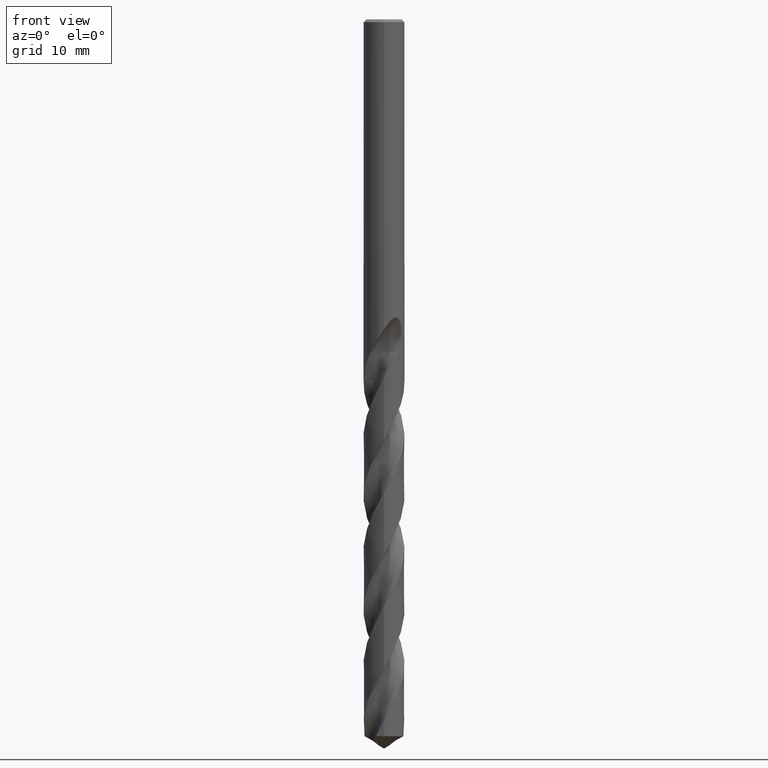
[diagram: clean part render]
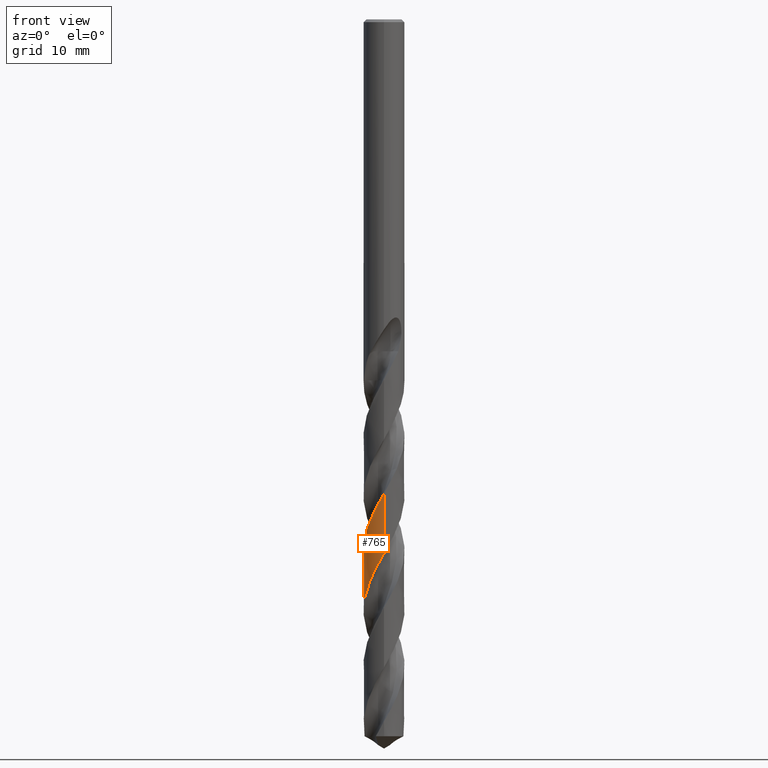
[diagram: same view with one face highlighted and labeled with its STEP entity id]
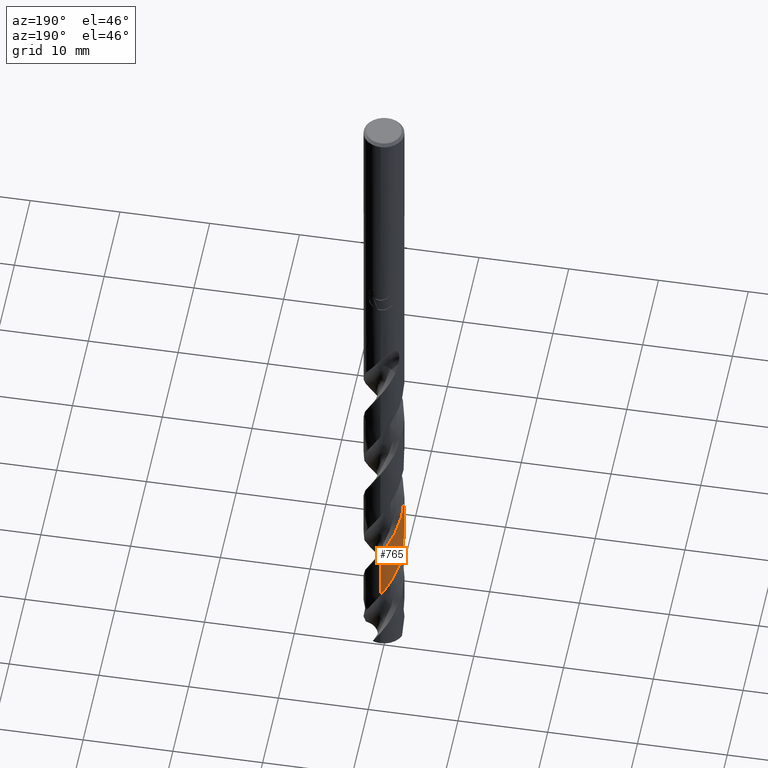
[diagram: same view with one face highlighted and labeled with its STEP entity id]
A machine part, front view. The second image highlights one B-rep face of the part: STEP entity #765.
A second angle (auxiliary view) of the same face is appended — the face is thin or edge-on in the first view.
In plain terms, the highlighted conical surface has half-angle 0 deg.
Its self-contained STEP definition (entity closure, byte-faithful):
#377=VERTEX_POINT('',#947);
#523=VERTEX_POINT('',#1107);
#679=EDGE_CURVE('',#761,#709,#1276,.T.);
#707=EDGE_CURVE('',#709,#523,#1307,.T.);
#709=VERTEX_POINT('',#1309);
#743=EDGE_CURVE('',#523,#377,#1347,.T.);
#761=VERTEX_POINT('',#1365);
#765=ADVANCED_FACE('',(#1369),#1370,.T.);
#789=EDGE_CURVE('',#377,#761,#1396,.T.);
#947=CARTESIAN_POINT('',(-8.8014092150001E-014,-2.24993173351738,-51.9913240512082));
#1107=CARTESIAN_POINT('',(-1.86078440485266E-015,-2.24994862443339,-58.5868996756251));
#1276=LINE('',#7975,#7976);
#1307=B_SPLINE_CURVE_WITH_KNOTS('',3,(#9027,#9028,#9029,#9030,#9031,#9032,#9033,#9034,#9035,#9036,#9037,#9038,#9039,#9040,#9041,#9042,#9043,#9044,#9045,#9046,#9047,#9048,#9049,#9050,#9051,#9052,#9053,#9054,#9055,#9056,#9057,#9058,#9059,#9060,#9061,#9062,#9063,#9064,#9065,#9066,#9067,#9068,#9069,#9070,#9071,#9072,#9073,#9074,#9075,#9076,#9077,#9078,#9079,#9080,#9081,#9082,#9083,#9084,#9085,#9086,#9087,#9088,#9089,#9090,#9091,#9092,#9093,#9094,#9095,#9096,#9097,#9098,#9099,#9100,#9101,#9102,#9103,#9104,#9105,#9106,#9107,#9108,#9109,#9110,#9111,#9112,#9113,#9114,#9115,#9116,#9117,#9118,#9119,#9120,#9121,#9122,#9123,#9124,#9125,#9126,#9127,#9128,#9129,#9130,#9131,#9132,#9133,#9134,#9135,#9136,#9137,#9138,#9139,#9140,#9141,#9142,#9143,#9144,#9145,#9146,#9147,#9148,#9149,#9150),.UNSPECIFIED.,.F.,.F.,(4,2,2,2,2,2,2,2,2,2,2,2,2,2,2,2,2,2,2,2,2,2,2,2,2,2,2,2,2,2,2,2,2,2,2,2,2,2,2,2,2,2,2,2,2,2,2,2,2,2,2,2,2,2,2,2,2,2,2,2,2,4),(0.0,0.0466261055672885,1.52303063559916,1.60058358218691,2.630456244664,3.44019373341575,4.20498012131632,4.97178479545146,5.73691612475028,6.50489864307532,7.27009664734627,8.03931752793195,8.80477975586422,9.57523530347814,10.3410236148287,11.1127098319767,11.8788525090644,12.6518370894737,13.4008077389436,13.7889663420783,14.1307576216393,15.4279138916359,15.583145457963,16.5835943804768,17.3578365488728,18.1275912882764,18.9031016096508,19.6731867016736,19.9999162676805,20.356805041322,21.6305118399056,21.957502544516,22.7370833152345,23.1276258777632,23.515166377853,24.8500792704919,24.9978690350612,26.1617746514953,26.9258048738281,27.7005070685229,28.4658907629098,29.2401229759259,30.0067751985739,30.7805558407156,31.5328451223028,32.422510234263,33.2224633181093,33.9981084960261,34.7587957887474,35.5335420936246,36.2955717095529,37.0695397490351,37.8330476487325,38.6064076253993,39.371370221219,40.0245333316545,41.1667926286067,42.0292404785394,42.0693860812059,43.3453316655265,43.9834485056916,44.6240352850066),.UNSPECIFIED.);
#1309=CARTESIAN_POINT('',(-1.21283237270191E-014,2.24998067415239,-71.1016943382078));
#1347=LINE('',#9343,#9344);
#1365=CARTESIAN_POINT('',(1.4174858852018E-013,2.24996378460406,-64.5066527668295));
#1369=FACE_OUTER_BOUND('',#9447,.T.);
#1370=CONICAL_SURFACE('',#9448,2.24995,2.56094645322142E-006);
#1396=B_SPLINE_CURVE_WITH_KNOTS('',3,(#9611,#9612,#9613,#9614,#9615,#9616,#9617,#9618,#9619,#9620,#9621,#9622,#9623,#9624,#9625,#9626,#9627,#9628,#9629,#9630,#9631,#9632,#9633,#9634,#9635,#9636,#9637,#9638,#9639,#9640,#9641,#9642,#9643,#9644,#9645,#9646,#9647,#9648,#9649,#9650,#9651,#9652,#9653,#9654,#9655,#9656,#9657,#9658,#9659,#9660,#9661,#9662,#9663,#9664,#9665,#9666,#9667,#9668,#9669,#9670,#9671,#9672,#9673,#9674,#9675,#9676,#9677,#9678,#9679,#9680,#9681,#9682,#9683,#9684,#9685,#9686,#9687,#9688,#9689,#9690,#9691,#9692,#9693,#9694,#9695,#9696,#9697,#9698,#9699,#9700,#9701,#9702,#9703,#9704,#9705,#9706,#9707,#9708,#9709,#9710,#9711,#9712,#9713,#9714,#9715,#9716,#9717,#9718,#9719,#9720,#9721,#9722,#9723,#9724,#9725,#9726,#9727,#9728,#9729,#9730,#9731,#9732,#9733,#9734,#9735,#9736),.UNSPECIFIED.,.F.,.F.,(4,2,2,2,2,2,2,2,2,2,2,2,2,2,2,2,2,2,2,2,2,2,2,2,2,2,2,2,2,2,2,2,2,2,2,2,2,2,2,2,2,2,2,2,2,2,2,2,2,2,2,2,2,2,2,2,2,2,2,2,2,2,4),(0.0,0.658729216683426,1.41215630054615,2.17567937553736,2.84104373492377,3.80100608845404,4.40122978906446,5.37153083314714,5.97004464820672,6.94667568292461,7.52898634840914,8.4924188350346,9.0990643242038,10.068798805186,10.6633012242142,11.6346131863277,12.2267375637196,13.1972037098199,13.7902881201795,14.7568783283559,15.3561964089543,16.3233246679527,16.9217910022944,17.8943225993414,18.4832218534276,19.4523312916974,20.0467742531556,21.0124747674605,21.6123982652126,22.5803802712467,23.1763179778044,24.1477217025157,24.737651852155,25.7065518982418,26.3002288338463,27.2645031282731,27.8660831357077,28.8353544798742,29.4279794417601,30.3979669183904,30.9894424762761,31.9581708478248,32.5510155003537,33.5140616612185,34.1169565080491,35.0872688382185,35.6770455312836,36.6462140089736,37.2382743126483,38.2050991342089,38.7995758145493,39.7652754990222,40.3653721562656,41.3329106961502,42.1895497462272,42.841056789572,43.821409718665,44.3129456911663,44.559120576954,44.6820168049159,44.7433357309734,44.7739500407802,44.8045339009492),.UNSPECIFIED.);
#7975=CARTESIAN_POINT('',(-2.75826365758532E-016,2.24995,-59.124031803594));
#7976=VECTOR('',#12771,1.0);
#9027=CARTESIAN_POINT('',(2.13356564105792,-0.714421203000789,-78.648063607188));
#9028=CARTESIAN_POINT('',(2.13597707288747,-0.707219532318833,-78.6345035262981));
#9029=CARTESIAN_POINT('',(2.13836599834528,-0.699964201339924,-78.6208663616761));
#9030=CARTESIAN_POINT('',(2.21582415293199,-0.460559414221809,-78.171889415537));
#9031=CARTESIAN_POINT('',(2.25276005697096,-0.217647155177345,-77.7457790248743));
#9032=CARTESIAN_POINT('',(2.24968224635138,0.0397385206539078,-77.2887371550449));
#9033=CARTESIAN_POINT('',(2.24941900646631,0.0525675484141838,-77.2659354401323));
#9034=CARTESIAN_POINT('',(2.24408327465212,0.235993627148386,-76.9401145815292));
#9035=CARTESIAN_POINT('',(2.21972971047913,0.405671180483948,-76.6399065884255));
#9036=CARTESIAN_POINT('',(2.14211517453889,0.701371052317301,-76.0994202063407));
#9037=CARTESIAN_POINT('',(2.09639793222338,0.828024483140251,-75.8605455855159));
#9038=CARTESIAN_POINT('',(1.98614649246037,1.06479020917998,-75.3979563795893));
#9039=CARTESIAN_POINT('',(1.92293801880878,1.17511715896917,-75.1744854535025));
#9040=CARTESIAN_POINT('',(1.77828590064576,1.38433026645557,-74.7247563919534));
#9041=CARTESIAN_POINT('',(1.69720583538701,1.48259964041486,-74.4987164272722));
#9042=CARTESIAN_POINT('',(1.51961704320246,1.66412071660317,-74.0489109737997));
#9043=CARTESIAN_POINT('',(1.42336511359442,1.7471698879127,-73.8254589026387));
#9044=CARTESIAN_POINT('',(1.21734657567569,1.89651085023736,-73.3755642682217));
#9045=CARTESIAN_POINT('',(1.10811900895505,1.96231718008816,-73.1493308929748));
#9046=CARTESIAN_POINT('',(0.880304532799659,2.07450188792662,-72.6994543498037));
#9047=CARTESIAN_POINT('',(0.762003053833499,2.1208229232099,-72.476133876225));
#9048=CARTESIAN_POINT('',(0.51801235888827,2.1932547431314,-72.0261859216112));
#9049=CARTESIAN_POINT('',(0.392998574484941,2.21904858328364,-71.7997787381613));
#9050=CARTESIAN_POINT('',(0.140824293514901,2.24913980540844,-71.3498015030404));
#9051=CARTESIAN_POINT('',(0.0139111861121134,2.2535122607082,-71.1265714200856));
#9052=CARTESIAN_POINT('',(-0.240349739743012,2.24074731982133,-70.6765497577273));
#9053=CARTESIAN_POINT('',(-0.366942251009118,2.22350673831747,-70.4499891018574));
#9054=CARTESIAN_POINT('',(-0.614784830728546,2.16805611039287,-69.9999353242463));
#9055=CARTESIAN_POINT('',(-0.735876658234565,2.13001597311322,-69.7767997551927));
#9056=CARTESIAN_POINT('',(-0.971485502953687,2.03345566655858,-69.326727980997));
#9057=CARTESIAN_POINT('',(-1.08523541098659,1.97506777066149,-69.1000362176007));
#9058=CARTESIAN_POINT('',(-1.30052552409207,1.84038699796611,-68.649944463667));
#9059=CARTESIAN_POINT('',(-1.40202867659697,1.76430350803553,-68.4269176502059));
#9060=CARTESIAN_POINT('',(-1.5921738175317,1.59490341768532,-67.976815377953));
#9061=CARTESIAN_POINT('',(-1.68011019247138,1.50195112919019,-67.7500017182522));
#9062=CARTESIAN_POINT('',(-1.83654903345821,1.30564765872047,-67.3050288772386));
#9063=CARTESIAN_POINT('',(-1.90552773172232,1.20277079464298,-67.0871811218855));
#9064=CARTESIAN_POINT('',(-1.99697028569423,1.03855150225748,-66.7550174082803));
#9065=CARTESIAN_POINT('',(-2.02572992933102,0.98126157106241,-66.6417465803431));
#9066=CARTESIAN_POINT('',(-2.07508751881499,0.871519125832286,-66.4283378760446));
#9067=CARTESIAN_POINT('',(-2.09622983835876,0.819359253875499,-66.3282033315702));
#9068=CARTESIAN_POINT('',(-2.18820927518726,0.565479459518504,-65.8491120757691));
#9069=CARTESIAN_POINT('',(-2.23196155369882,0.355348876487865,-65.4755489333276));
#9070=CARTESIAN_POINT('',(-2.24707716801505,0.116791347202708,-65.0511031236475));
#9071=CARTESIAN_POINT('',(-2.24825618739296,0.0913105014553892,-65.0057226336637));
#9072=CARTESIAN_POINT('',(-2.25381031152081,-0.098519636718732,-64.6683072551502));
#9073=CARTESIAN_POINT('',(-2.24060519087953,-0.263135951107882,-64.3788192781073));
#9074=CARTESIAN_POINT('',(-2.18530711398945,-0.550511387010957,-63.8614884716938));
#9075=CARTESIAN_POINT('',(-2.15058939349651,-0.673430705013908,-63.6349663857866));
#9076=CARTESIAN_POINT('',(-2.06112686017562,-0.911102133960918,-63.1849449251297));
#9077=CARTESIAN_POINT('',(-2.00656960540012,-1.02571111976852,-62.9617965629973));
#9078=CARTESIAN_POINT('',(-1.87810719395805,-1.24553382673321,-62.5117434416694));
#9079=CARTESIAN_POINT('',(-1.80444356418099,-1.35001080052555,-62.2850790634886));
#9080=CARTESIAN_POINT('',(-1.64106780986988,-1.54441271970944,-61.8350099244914));
#9081=CARTESIAN_POINT('',(-1.55157041482641,-1.63432045014788,-61.611972706538));
#9082=CARTESIAN_POINT('',(-1.41384096827592,-1.75107012024469,-61.2928464904085));
#9083=CARTESIAN_POINT('',(-1.37162587440386,-1.78432648009713,-61.1978430026435));
#9084=CARTESIAN_POINT('',(-1.28100288044179,-1.8506117919409,-60.9987932632681));
#9085=CARTESIAN_POINT('',(-1.23243569220689,-1.88330114501907,-60.894646032868));
#9086=CARTESIAN_POINT('',(-1.00494608766055,-2.02385891156572,-60.4201156415689));
#9087=CARTESIAN_POINT('',(-0.812903576109539,-2.10833291967349,-60.0547051015311));
#9088=CARTESIAN_POINT('',(-0.560401963249512,-2.17970254081487,-59.589095978218));
#9089=CARTESIAN_POINT('',(-0.508368739542821,-2.19242302467257,-59.4937983223926));
#9090=CARTESIAN_POINT('',(-0.330579154785765,-2.22920450808144,-59.1717550953411));
#9091=CARTESIAN_POINT('',(-0.203185888197144,-2.24442386272473,-58.9461272955124));
#9092=CARTESIAN_POINT('',(-0.0107825970435421,-2.25084010139822,-58.6059621185497));
#9093=CARTESIAN_POINT('',(0.0534163048034463,-2.25022714178282,-58.4925448452274));
#9094=CARTESIAN_POINT('',(0.180933309540298,-2.24356259344336,-58.2661678350427));
#9095=CARTESIAN_POINT('',(0.244181358447918,-2.23756048128309,-58.1531408291782));
#9096=CARTESIAN_POINT('',(0.523956371854152,-2.19900765449954,-57.6521379761302));
#9097=CARTESIAN_POINT('',(0.735028269543249,-2.13769107199823,-57.2698764872467));
#9098=CARTESIAN_POINT('',(0.955814406469818,-2.03697142460339,-56.8386161401294));
#9099=CARTESIAN_POINT('',(0.977653704728292,-2.02658082686662,-56.7955966460188));
#9100=CARTESIAN_POINT('',(1.17054712709929,-1.93094789743366,-56.4132519362349));
#9101=CARTESIAN_POINT('',(1.33031766517366,-1.82458761772635,-56.0780438509067));
#9102=CARTESIAN_POINT('',(1.56971567705655,-1.61678948461062,-55.5167239067402));
#9103=CARTESIAN_POINT('',(1.6575261518748,-1.52664790779665,-55.2933681591637));
#9104=CARTESIAN_POINT('',(1.81845013419937,-1.33106184825117,-54.845315583003));
#9105=CARTESIAN_POINT('',(1.8909294055259,-1.22590736141952,-54.6209088198693));
#9106=CARTESIAN_POINT('',(2.01650053086788,-1.00588020458041,-54.1724256421656));
#9107=CARTESIAN_POINT('',(2.06960135498892,-0.891536275441972,-53.9486354016206));
#9108=CARTESIAN_POINT('',(2.15669207632407,-0.653551769060377,-53.5002634448192));
#9109=CARTESIAN_POINT('',(2.19023062859374,-0.530400705553036,-53.2759870212329));
#9110=CARTESIAN_POINT('',(2.23587646106483,-0.281016377816701,-52.8272483250641));
#9111=CARTESIAN_POINT('',(2.24810782792538,-0.155337824481077,-52.6030791940095));
#9112=CARTESIAN_POINT('',(2.25139441099909,0.0981533885576738,-52.1544614337645));
#9113=CARTESIAN_POINT('',(2.24223269859519,0.225381338777609,-51.9303156709527));
#9114=CARTESIAN_POINT('',(2.20303959216081,0.473421161890867,-51.485925647594));
#9115=CARTESIAN_POINT('',(2.17369187029939,0.593771100272681,-51.2659793785639));
#9116=CARTESIAN_POINT('',(2.08830955148082,0.850036845408453,-50.7878469025927));
#9117=CARTESIAN_POINT('',(2.02862635273907,0.98399525118034,-50.530592038733));
#9118=CARTESIAN_POINT('',(1.8914293623223,1.22554617097532,-50.0385856362326));
#9119=CARTESIAN_POINT('',(1.81653263162121,1.33406748776726,-49.8047028734714));
#9120=CARTESIAN_POINT('',(1.65095948547999,1.53388897957164,-49.3458152572885));
#9121=CARTESIAN_POINT('',(1.56127377543103,1.62507167641074,-49.1210778976765));
#9122=CARTESIAN_POINT('',(1.36944326917613,1.7895340484966,-48.6734693201687));
#9123=CARTESIAN_POINT('',(1.26776932687369,1.862961070455,-48.4509334412707));
#9124=CARTESIAN_POINT('',(1.05100948610617,1.9934450149843,-48.0034701635698));
#9125=CARTESIAN_POINT('',(0.936287735101574,2.04982198736542,-47.778860115501));
#9126=CARTESIAN_POINT('',(0.700632781722603,2.14172454395059,-47.3308955256373));
#9127=CARTESIAN_POINT('',(0.580152291938146,2.17746029833042,-47.1078536922054));
#9128=CARTESIAN_POINT('',(0.332280604261096,2.22889940968004,-46.6600452931501));
#9129=CARTESIAN_POINT('',(0.205447167991261,2.24414030983781,-46.4355736943046));
#9130=CARTESIAN_POINT('',(-0.0475934032158873,2.25292428285902,-45.9872737437107));
#9131=CARTESIAN_POINT('',(-0.173372854509701,2.24675331904837,-45.7637386918276));
#9132=CARTESIAN_POINT('',(-0.424458060508603,2.21318778633413,-45.3155773749886));
#9133=CARTESIAN_POINT('',(-0.549115464771952,2.18559321448081,-45.0912354244968));
#9134=CARTESIAN_POINT('',(-0.791019839458185,2.11004202378183,-44.6426343329933));
#9135=CARTESIAN_POINT('',(-0.907879613589606,2.0624634291164,-44.4186591810083));
#9136=CARTESIAN_POINT('',(-1.1161940543182,1.95647647249494,-44.0050932815156));
#9137=CARTESIAN_POINT('',(-1.20853194421172,1.90082841841712,-43.8153444095928));
#9138=CARTESIAN_POINT('',(-1.45048147323191,1.73022294663034,-43.2918774936028));
#9139=CARTESIAN_POINT('',(-1.59015230842921,1.60281486574216,-42.9578576101468));
#9140=CARTESIAN_POINT('',(-1.80467504854642,1.35110109196218,-42.3735096456022));
#9141=CARTESIAN_POINT('',(-1.88626433405599,1.23455935680271,-42.1236767503233));
#9142=CARTESIAN_POINT('',(-1.9594700002714,1.10571100165352,-41.8601831864307));
#9143=CARTESIAN_POINT('',(-1.96269697409438,1.09997274039804,-41.8484724725061));
#9144=CARTESIAN_POINT('',(-2.06787597822871,0.911001264885294,-41.4639442919001));
#9145=CARTESIAN_POINT('',(-2.14384293169812,0.714271850475041,-41.0962506837808));
#9146=CARTESIAN_POINT('',(-2.21525040524066,0.407156398775471,-40.5378741451452));
#9147=CARTESIAN_POINT('',(-2.23185801946747,0.303226230218844,-40.3510269279096));
#9148=CARTESIAN_POINT('',(-2.25045398264132,0.0931389316773641,-39.9779391324187));
#9149=CARTESIAN_POINT('',(-2.25234543035742,-0.0126376780765218,-39.7918025392972));
#9150=CARTESIAN_POINT('',(-2.24679470034184,-0.118167852299402,-39.6049290579384));
#9343=CARTESIAN_POINT('',(2.75234247398E-016,-2.24995,-59.124031803594));
#9344=VECTOR('',#12839,1.0);
#9447=EDGE_LOOP('',(#12854,#12855,#12856,#12857));
#9448=AXIS2_PLACEMENT_3D('',#12858,#12859,#12860);
#9611=CARTESIAN_POINT('',(0.0725616041171575,2.24872961374875,-39.6045248001466));
#9612=CARTESIAN_POINT('',(0.180377583151536,2.24525111710368,-39.7957770226307));
#9613=CARTESIAN_POINT('',(0.287877009804448,2.23402098838829,-39.9867762426494));
#9614=CARTESIAN_POINT('',(0.515865047363587,2.19344636505256,-40.3965960046914));
#9615=CARTESIAN_POINT('',(0.635479525314473,2.16182266966221,-40.6146221229196));
#9616=CARTESIAN_POINT('',(0.869820577843305,2.07873522939792,-41.0549531519037));
#9617=CARTESIAN_POINT('',(0.984105927251652,2.0271361984193,-41.2762670774434));
#9618=CARTESIAN_POINT('',(1.18888274820632,1.91325289100747,-41.6909805122487));
#9619=CARTESIAN_POINT('',(1.28021588795633,1.85337852053011,-41.8836780857037));
#9620=CARTESIAN_POINT('',(1.49177778220335,1.69157533538663,-42.3555419592925));
#9621=CARTESIAN_POINT('',(1.60642348969177,1.58312283641452,-42.633662218565));
#9622=CARTESIAN_POINT('',(1.77287858262039,1.38877033751932,-43.0865152296651));
#9623=CARTESIAN_POINT('',(1.8319163653655,1.3099061877232,-43.2603892441844));
#9624=CARTESIAN_POINT('',(1.97236028724387,1.09416081563241,-43.716369110231));
#9625=CARTESIAN_POINT('',(2.04478457935508,0.951991395454111,-43.9975053235453));
#9626=CARTESIAN_POINT('',(2.13666472945223,0.711623320090198,-44.4529166075765));
#9627=CARTESIAN_POINT('',(2.16566525104682,0.617760251740461,-44.6263312174365));
#9628=CARTESIAN_POINT('',(2.22561004840765,0.366610290419393,-45.0837087482251));
#9629=CARTESIAN_POINT('',(2.24606582221964,0.207302027237066,-45.3666891030092));
#9630=CARTESIAN_POINT('',(2.2514231172873,-0.0483866121380456,-45.8192782722172));
#9631=CARTESIAN_POINT('',(2.24733931721512,-0.143887944365868,-45.9880250041173));
#9632=CARTESIAN_POINT('',(2.22044134194438,-0.395875923539248,-46.4369099172693));
#9633=CARTESIAN_POINT('',(2.18717623333664,-0.550796656685631,-46.7161277783956));
#9634=CARTESIAN_POINT('',(2.10691975776634,-0.795570563821809,-47.172003533946));
#9635=CARTESIAN_POINT('',(2.06968121767715,-0.887948531315885,-47.3477990991296));
#9636=CARTESIAN_POINT('',(1.95738478618018,-1.1207453930597,-47.8056336255936));
#9637=CARTESIAN_POINT('',(1.8732886348087,-1.25628653324111,-48.0866941158641));
#9638=CARTESIAN_POINT('',(1.71565080021317,-1.45883891987109,-48.5409228804987));
#9639=CARTESIAN_POINT('',(1.65081927633946,-1.53181407274516,-48.7132309693552));
#9640=CARTESIAN_POINT('',(1.4681889715162,-1.71229382510654,-49.16804636938));
#9641=CARTESIAN_POINT('',(1.34328337084161,-1.81194919417053,-49.4495912268198));
#9642=CARTESIAN_POINT('',(1.12689820767733,-1.94979767500648,-49.9036361509604));
#9643=CARTESIAN_POINT('',(1.04168133650932,-1.99662231461814,-50.0752755844543));
#9644=CARTESIAN_POINT('',(0.80958081413261,-2.10525185886974,-50.5292024893895));
#9645=CARTESIAN_POINT('',(0.658620114206539,-2.15725913353913,-50.8105333265225));
#9646=CARTESIAN_POINT('',(0.408513590450368,-2.21467282222801,-51.2646596760097));
#9647=CARTESIAN_POINT('',(0.312366274114281,-2.23026375936307,-51.4365938676157));
#9648=CARTESIAN_POINT('',(0.0577283131816032,-2.25477125507673,-51.8897223248734));
#9649=CARTESIAN_POINT('',(-0.101308663010068,-2.25324269965436,-52.1699684341404));
#9650=CARTESIAN_POINT('',(-0.356626887602766,-2.22366684412273,-52.6248301550543));
#9651=CARTESIAN_POINT('',(-0.453459781957313,-2.20595579518053,-52.798584300027));
#9652=CARTESIAN_POINT('',(-0.702650414425726,-2.14328187115279,-53.2537312100448));
#9653=CARTESIAN_POINT('',(-0.852040337677841,-2.08840665092015,-53.5341636739514));
#9654=CARTESIAN_POINT('',(-1.08257548420254,-1.97481582016993,-53.9889850069039));
#9655=CARTESIAN_POINT('',(-1.1677285001702,-1.92568616675285,-54.162513548174));
#9656=CARTESIAN_POINT('',(-1.38206729005832,-1.78257340621743,-54.6190330543731));
#9657=CARTESIAN_POINT('',(-1.50500948005022,-1.68007911473466,-54.9010498880004));
#9658=CARTESIAN_POINT('',(-1.68336422406238,-1.49594918558754,-55.3547088754191));
#9659=CARTESIAN_POINT('',(-1.74606012192154,-1.42226697536994,-55.525490270094));
#9660=CARTESIAN_POINT('',(-1.89884991335095,-1.21732899525976,-55.9782825471605));
#9661=CARTESIAN_POINT('',(-1.98014577820586,-1.08008532755434,-56.2593442610263));
#9662=CARTESIAN_POINT('',(-2.08687486854363,-0.846597294794362,-56.7136686359319));
#9663=CARTESIAN_POINT('',(-2.12161775101764,-0.755315703057452,-56.8860698191398));
#9664=CARTESIAN_POINT('',(-2.19695333723943,-0.510647275883014,-57.3395316765166));
#9665=CARTESIAN_POINT('',(-2.2274732611044,-0.354637182582126,-57.6196428155253));
#9666=CARTESIAN_POINT('',(-2.24994661412044,-0.0985296085722693,-58.0746199903154));
#9667=CARTESIAN_POINT('',(-2.25210070805484,2.91763177641541E-005,-58.2486247332406));
#9668=CARTESIAN_POINT('',(-2.24085041363748,0.257086833794062,-58.7043938344398));
#9669=CARTESIAN_POINT('',(-2.21711364650659,0.414670753674939,-58.9851929195306));
#9670=CARTESIAN_POINT('',(-2.15222060020359,0.663176890315572,-59.4397248217549));
#9671=CARTESIAN_POINT('',(-2.1213505090899,0.756121059152177,-59.6125973644456));
#9672=CARTESIAN_POINT('',(-2.02454311995071,0.994449267055882,-60.0682520770398));
#9673=CARTESIAN_POINT('',(-1.94898810064619,1.13542541543136,-60.3500659507116));
#9674=CARTESIAN_POINT('',(-1.80454929512098,1.34732503139768,-60.8038939911716));
#9675=CARTESIAN_POINT('',(-1.74488108706083,1.42374965560916,-60.975047423859));
#9676=CARTESIAN_POINT('',(-1.57474288526644,1.61486220122432,-61.4282752160692));
#9677=CARTESIAN_POINT('',(-1.45665142587791,1.7221505356175,-61.7093976339536));
#9678=CARTESIAN_POINT('',(-1.24946846215236,1.87367257605376,-62.1636357495849));
#9679=CARTESIAN_POINT('',(-1.1671232326944,1.9260409421181,-62.3358898539432));
#9680=CARTESIAN_POINT('',(-0.942861207830124,2.04899684948528,-62.7889114794521));
#9681=CARTESIAN_POINT('',(-0.79635625260483,2.11026821379104,-63.068733123193));
#9682=CARTESIAN_POINT('',(-0.549896864220283,2.18396573047708,-63.5239755579438));
#9683=CARTESIAN_POINT('',(-0.453484013234582,2.20599973263263,-63.6985351273465));
#9684=CARTESIAN_POINT('',(-0.198831827614817,2.2468027148946,-64.1553592665984));
#9685=CARTESIAN_POINT('',(-0.0394095225320534,2.25524816704748,-64.4366505592424));
#9686=CARTESIAN_POINT('',(0.216848246440145,2.241606334158,-64.8907912115724));
#9687=CARTESIAN_POINT('',(0.313603865382297,2.23012662739687,-65.0627802772143));
#9688=CARTESIAN_POINT('',(0.565899745351309,2.18345433463676,-65.517257380583));
#9689=CARTESIAN_POINT('',(0.719057759273903,2.13792245217571,-65.798785043724));
#9690=CARTESIAN_POINT('',(0.95586293114678,2.03914916549152,-66.2528480391804));
#9691=CARTESIAN_POINT('',(1.04301151829464,1.99597604619023,-66.4245226371861));
#9692=CARTESIAN_POINT('',(1.26476010448375,1.86763302891403,-66.878346933562));
#9693=CARTESIAN_POINT('',(1.39366036066885,1.77353399732932,-67.1595409526249));
#9694=CARTESIAN_POINT('',(1.58374751837279,1.60112731988012,-67.613684393066));
#9695=CARTESIAN_POINT('',(1.65155862081756,1.5310809931595,-67.7857721498767));
#9696=CARTESIAN_POINT('',(1.81701887875681,1.33635278534053,-68.2383914500111));
#9697=CARTESIAN_POINT('',(1.90647972218574,1.20530957027929,-68.5179803368932));
#9698=CARTESIAN_POINT('',(2.02840859406293,0.978654994074317,-68.9734463650645));
#9699=CARTESIAN_POINT('',(2.06951865443974,0.888419504441049,-69.1484623168753));
#9700=CARTESIAN_POINT('',(2.16091353217151,0.646721571280063,-69.6061706590449));
#9701=CARTESIAN_POINT('',(2.20130745646029,0.492019039537635,-69.8878830068277));
#9702=CARTESIAN_POINT('',(2.23940936929813,0.238428230384075,-70.3416949088967));
#9703=CARTESIAN_POINT('',(2.24759755319718,0.141766406307667,-70.512934126796));
#9704=CARTESIAN_POINT('',(2.25270949468994,-0.114270278239715,-70.9665413907686));
#9705=CARTESIAN_POINT('',(2.23898471455212,-0.273397513670801,-71.247954526788));
#9706=CARTESIAN_POINT('',(2.18996030598664,-0.52532556745411,-71.7021467604473));
#9707=CARTESIAN_POINT('',(2.1651968775206,-0.61952052627933,-71.8740648884404));
#9708=CARTESIAN_POINT('',(2.08417692565506,-0.862475191086693,-72.3277027213556));
#9709=CARTESIAN_POINT('',(2.0180917127935,-1.00747380355474,-72.6084691745756));
#9710=CARTESIAN_POINT('',(1.88753819964618,-1.22849013005321,-73.0627310080037));
#9711=CARTESIAN_POINT('',(1.83241791097095,-1.30928337869587,-73.235364927186));
#9712=CARTESIAN_POINT('',(1.67448239522752,-1.51120089472449,-73.6894283987623));
#9713=CARTESIAN_POINT('',(1.56373881550535,-1.62553988507949,-73.9699049411228));
#9714=CARTESIAN_POINT('',(1.36609241309996,-1.79052474797414,-74.4255282117763));
#9715=CARTESIAN_POINT('',(1.28629498952283,-1.84868127134492,-74.5998146397695));
#9716=CARTESIAN_POINT('',(1.06860602063671,-1.98640813949218,-75.0560991707117));
#9717=CARTESIAN_POINT('',(0.92555922689788,-2.05696841507305,-75.3371232727508));
#9718=CARTESIAN_POINT('',(0.643987281906816,-2.16046160553508,-75.8679777490585));
#9719=CARTESIAN_POINT('',(0.507549403178618,-2.19651391680463,-76.1166594654619));
#9720=CARTESIAN_POINT('',(0.263113436359641,-2.23711981833553,-76.5556917124938));
#9721=CARTESIAN_POINT('',(0.15636249855931,-2.24711010740913,-76.7451246523096));
#9722=CARTESIAN_POINT('',(-0.111885110806746,-2.25298638735443,-77.2200607148165));
#9723=CARTESIAN_POINT('',(-0.272942100916709,-2.23918804564039,-77.5045595632765));
#9724=CARTESIAN_POINT('',(-0.510427696571033,-2.19282575975314,-77.9329610007357));
#9725=CARTESIAN_POINT('',(-0.588867892359716,-2.17307741849586,-78.0758988303018));
#9726=CARTESIAN_POINT('',(-0.704777251183396,-2.13715340732523,-78.2905707789464));
#9727=CARTESIAN_POINT('',(-0.743126734072237,-2.12412319145909,-78.3621857160388));
#9728=CARTESIAN_POINT('',(-0.800064226201124,-2.10304633727353,-78.4695822488));
#9729=CARTESIAN_POINT('',(-0.818927245826059,-2.09577316330323,-78.5053417261795));
#9730=CARTESIAN_POINT('',(-0.847049657077799,-2.08449216358481,-78.5589486068386));
#9731=CARTESIAN_POINT('',(-0.856384838590492,-2.08067438484593,-78.5767924024386));
#9732=CARTESIAN_POINT('',(-0.870341103471998,-2.07485691144027,-78.6035459367235));
#9733=CARTESIAN_POINT('',(-0.874981966806588,-2.07290412145318,-78.6124550586006));
#9734=CARTESIAN_POINT('',(-0.884245618840597,-2.06896949696645,-78.6302647079803));
#9735=CARTESIAN_POINT('',(-0.888868242462833,-2.06698776694846,-78.6391645280433));
#9736=CARTESIAN_POINT('',(-0.893483086900748,-2.06499103470749,-78.648063607188));
#12771=DIRECTION('',(-3.1361512984104E-022,2.56094645321862E-006,-0.999999999996721));
#12839=DIRECTION('',(-3.1361512984104E-022,2.56094645321862E-006,0.999999999996721));
#12854=ORIENTED_EDGE('',*,*,#679,.T.);
#12855=ORIENTED_EDGE('',*,*,#707,.T.);
#12856=ORIENTED_EDGE('',*,*,#743,.T.);
#12857=ORIENTED_EDGE('',*,*,#789,.T.);
#12858=CARTESIAN_POINT('',(0.0,0.0,-59.124031803594));
#12859=DIRECTION('',(0.0,-0.0,-1.0));
#12860=DIRECTION('',(0.0,1.0,0.0));